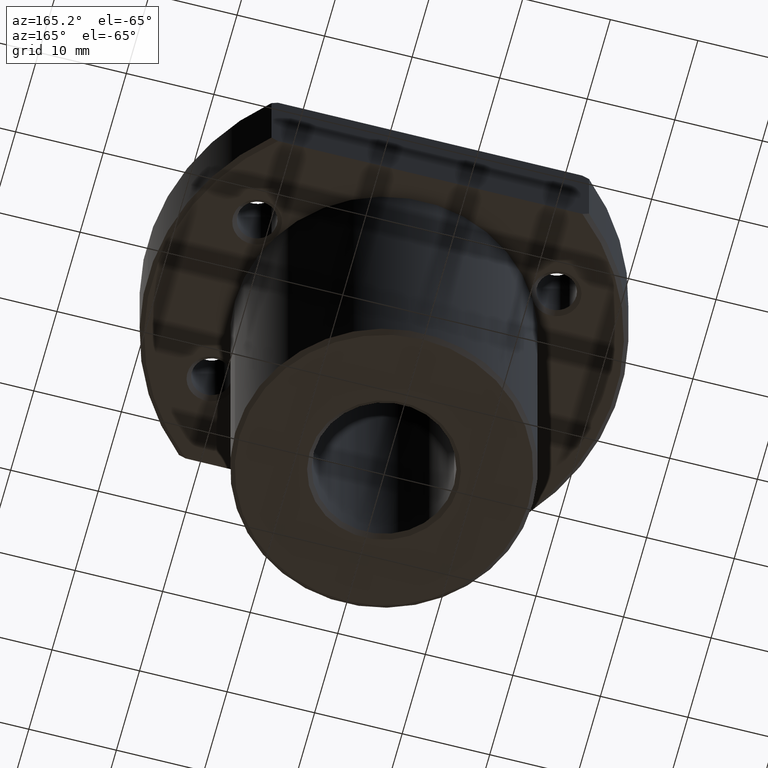
[diagram: clean part render]
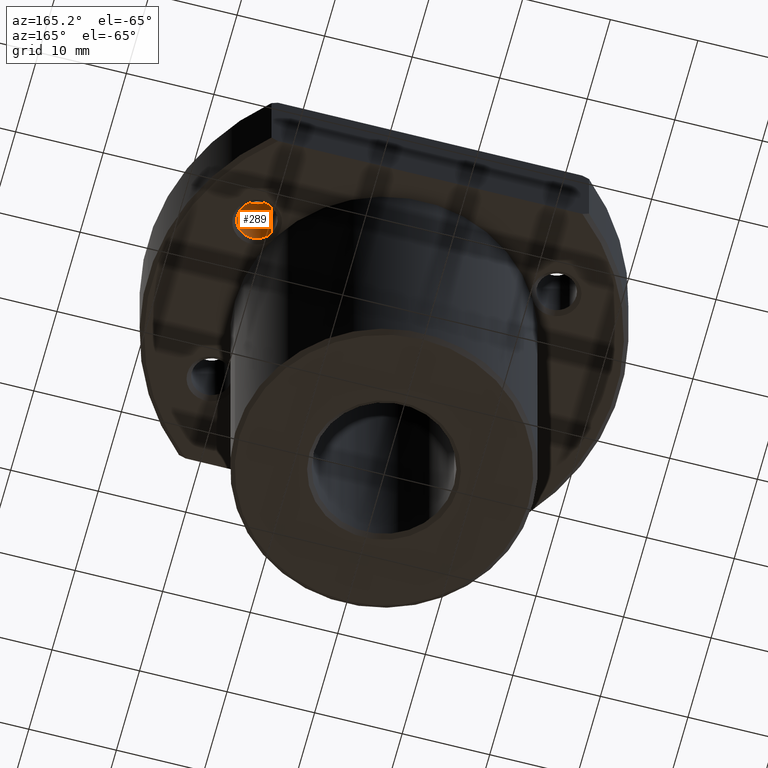
[diagram: same view with one face highlighted and labeled with its STEP entity id]
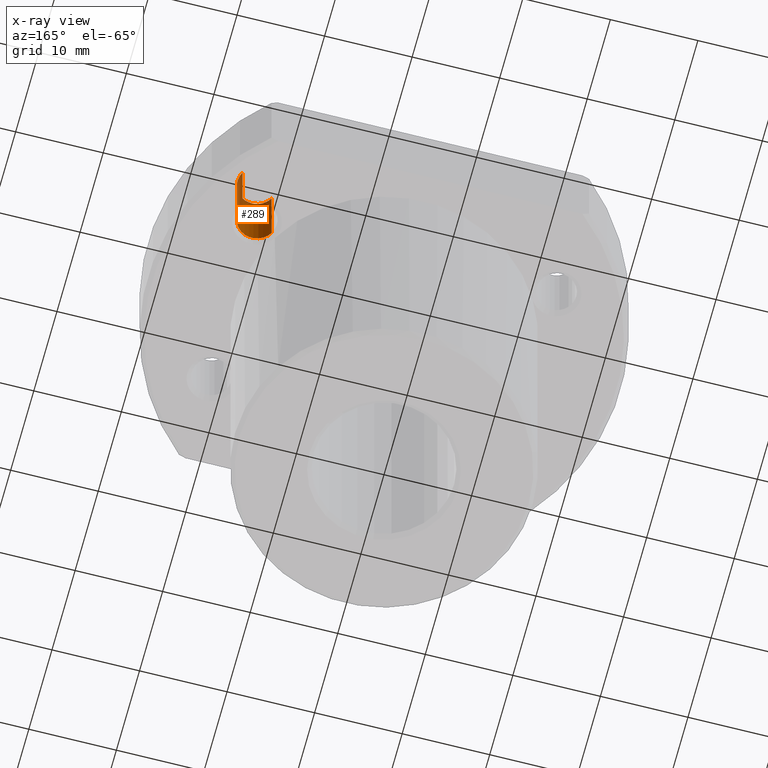
[diagram: x-ray of the same camera — body ghosted, the highlighted face saturated]
A machine part, auxiliary view. The second image highlights one B-rep face of the part: STEP entity #289.
The next image is the same camera in x-ray: the body ghosted, the highlighted face saturated — about 7% of this face is hidden behind the body in this view.
In plain terms, the highlighted cylindrical surface (edge-blend (fillet) strip) has radius 2.25 mm, axis along (0, 0, 1).
Its self-contained STEP definition (entity closure, byte-faithful):
#232=AXIS2_PLACEMENT_3D('Circle Axis2P3D',#230,#231,$) ;
#250=AXIS2_PLACEMENT_3D('Cylinder Axis2P3D',#247,#248,#249) ;
#280=AXIS2_PLACEMENT_3D('Circle Axis2P3D',#278,#279,$) ;
#196=CARTESIAN_POINT('Vertex',(19.0525588833,11.,35.5)) ;
#203=CARTESIAN_POINT('Vertex',(15.1554445662,8.75,35.5)) ;
#230=CARTESIAN_POINT('Axis2P3D Location',(17.1040017247,9.875,35.5)) ;
#247=CARTESIAN_POINT('Axis2P3D Location',(17.1040017247,9.875,40.)) ;
#256=CARTESIAN_POINT('Vertex',(19.0525588833,11.,44.5)) ;
#258=CARTESIAN_POINT('Vertex',(15.1554445662,8.75,44.5)) ;
#261=CARTESIAN_POINT('Line Origine',(15.1554445662,8.75,40.)) ;
#266=CARTESIAN_POINT('Line Origine',(19.0525588833,11.,40.)) ;
#278=CARTESIAN_POINT('Axis2P3D Location',(17.1040017247,9.875,44.5)) ;
#231=DIRECTION('Axis2P3D Direction',(0.,0.,1.)) ;
#248=DIRECTION('Axis2P3D Direction',(0.,0.,1.)) ;
#249=DIRECTION('Axis2P3D XDirection',(-0.866025403784,-0.5,0.)) ;
#262=DIRECTION('Vector Direction',(0.,0.,1.)) ;
#267=DIRECTION('Vector Direction',(0.,0.,1.)) ;
#279=DIRECTION('Axis2P3D Direction',(0.,0.,1.)) ;
#263=VECTOR('Line Direction',#262,1.) ;
#268=VECTOR('Line Direction',#267,1.) ;
#284=ORIENTED_EDGE('',*,*,#282,.T.) ;
#285=ORIENTED_EDGE('',*,*,#270,.F.) ;
#286=ORIENTED_EDGE('',*,*,#234,.F.) ;
#287=ORIENTED_EDGE('',*,*,#265,.T.) ;
#289=ADVANCED_FACE('',(#288),#251,.F.) ;
#233=CIRCLE('generated circle',#232,2.25) ;
#281=CIRCLE('generated circle',#280,2.25) ;
#251=CYLINDRICAL_SURFACE('generated cylinder',#250,2.25) ;
#234=EDGE_CURVE('',#204,#197,#233,.T.) ;
#265=EDGE_CURVE('',#204,#259,#264,.T.) ;
#270=EDGE_CURVE('',#197,#257,#269,.T.) ;
#282=EDGE_CURVE('',#259,#257,#281,.T.) ;
#283=EDGE_LOOP('',(#284,#285,#286,#287)) ;
#288=FACE_OUTER_BOUND('',#283,.T.) ;
#264=LINE('Line',#261,#263) ;
#269=LINE('Line',#266,#268) ;
#197=VERTEX_POINT('',#196) ;
#204=VERTEX_POINT('',#203) ;
#257=VERTEX_POINT('',#256) ;
#259=VERTEX_POINT('',#258) ;